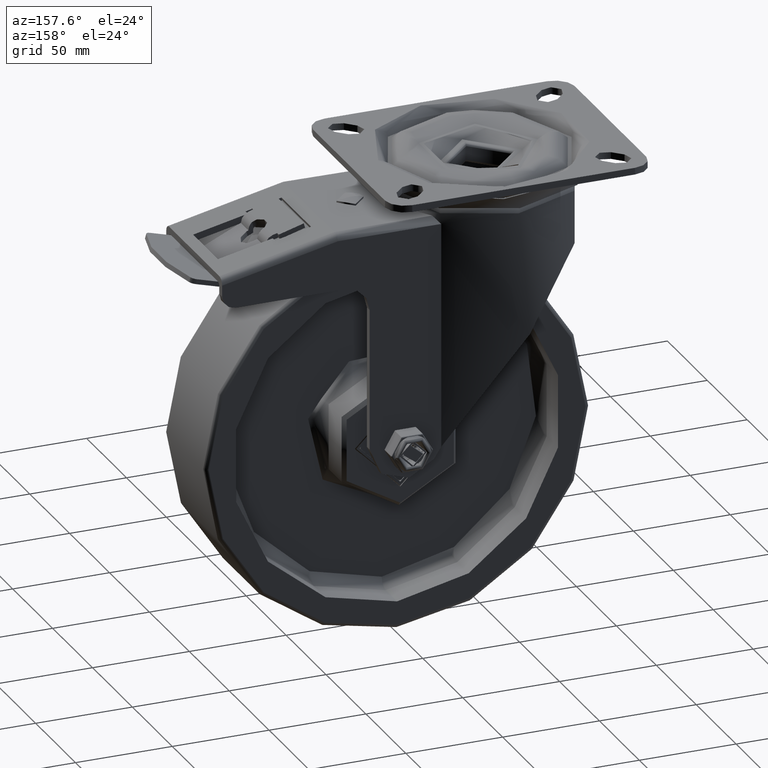
[diagram: clean part render]
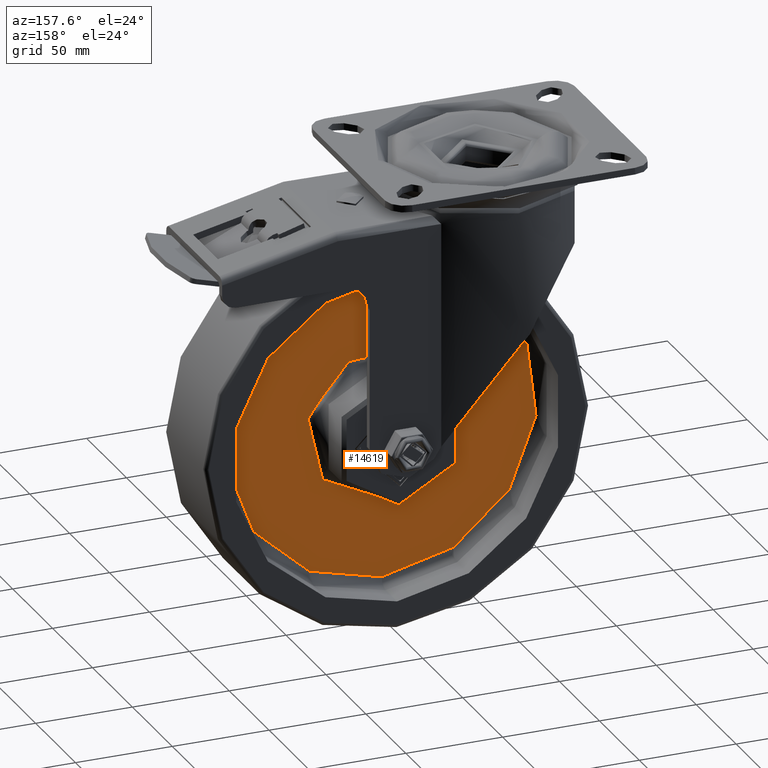
[diagram: same view with one face highlighted and labeled with its STEP entity id]
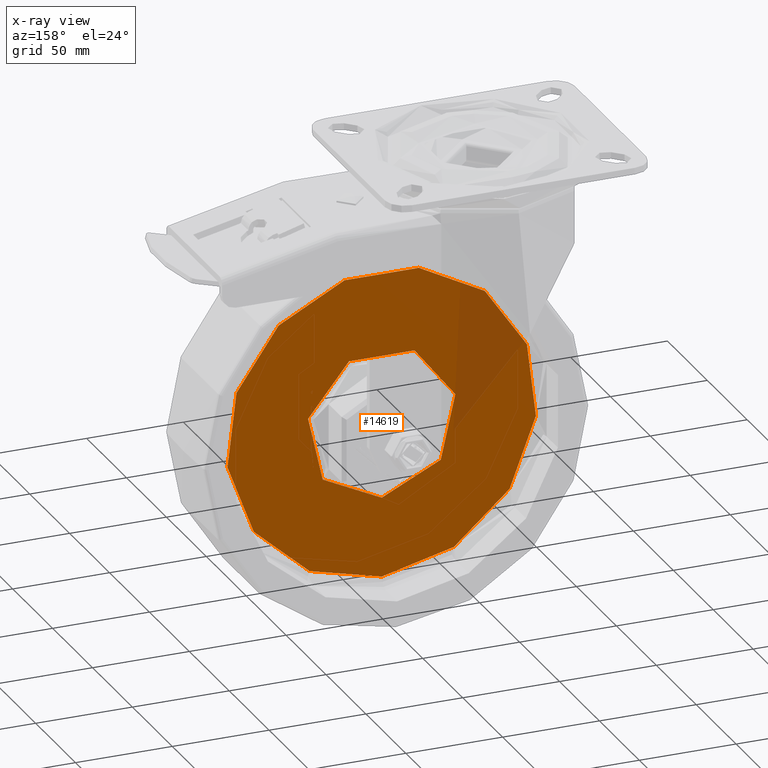
[diagram: x-ray of the same camera — body ghosted, the highlighted face saturated]
A machine part, auxiliary view. The second image highlights one B-rep face of the part: STEP entity #14619.
The next image is the same camera in x-ray: the body ghosted, the highlighted face saturated — about 10% of this face is hidden behind the body in this view.
In plain terms, the highlighted planar face has unit normal (0, 1, -0).
Its self-contained STEP definition (entity closure, byte-faithful):
#1348=FACE_BOUND('',#2830,.T.);
#1510=PLANE('',#15798);
#1952=FACE_OUTER_BOUND('',#2829,.T.);
#2829=EDGE_LOOP('',(#10156));
#2830=EDGE_LOOP('',(#10157));
#5978=CIRCLE('',#15774,39.);
#5979=CIRCLE('',#15776,80.25);
#6493=VERTEX_POINT('',#20952);
#6494=VERTEX_POINT('',#20956);
#7934=EDGE_CURVE('',#6493,#6493,#5978,.T.);
#7935=EDGE_CURVE('',#6494,#6494,#5979,.T.);
#10156=ORIENTED_EDGE('',*,*,#7935,.T.);
#10157=ORIENTED_EDGE('',*,*,#7934,.F.);
#14619=ADVANCED_FACE('',(#1952,#1348),#1510,.T.);
#15774=AXIS2_PLACEMENT_3D('',#20954,#17182,#17183);
#15776=AXIS2_PLACEMENT_3D('',#20957,#17186,#17187);
#15798=AXIS2_PLACEMENT_3D('',#20992,#17234,#17235);
#17182=DIRECTION('center_axis',(0.,1.,0.));
#17183=DIRECTION('ref_axis',(0.,0.,1.));
#17186=DIRECTION('center_axis',(0.,1.,0.));
#17187=DIRECTION('ref_axis',(0.,0.,1.));
#17234=DIRECTION('center_axis',(0.,1.,-1.26161707343768E-16));
#17235=DIRECTION('ref_axis',(0.,1.26161707343768E-16,1.));
#20952=CARTESIAN_POINT('',(-4.77612251667468E-15,5.75,-39.));
#20954=CARTESIAN_POINT('Origin',(0.,5.75,0.));
#20956=CARTESIAN_POINT('',(-9.82779056315751E-15,5.75000000000001,-80.25));
#20957=CARTESIAN_POINT('Origin',(0.,5.75000000000001,0.));
#20992=CARTESIAN_POINT('Origin',(0.,5.75000000000001,59.625));